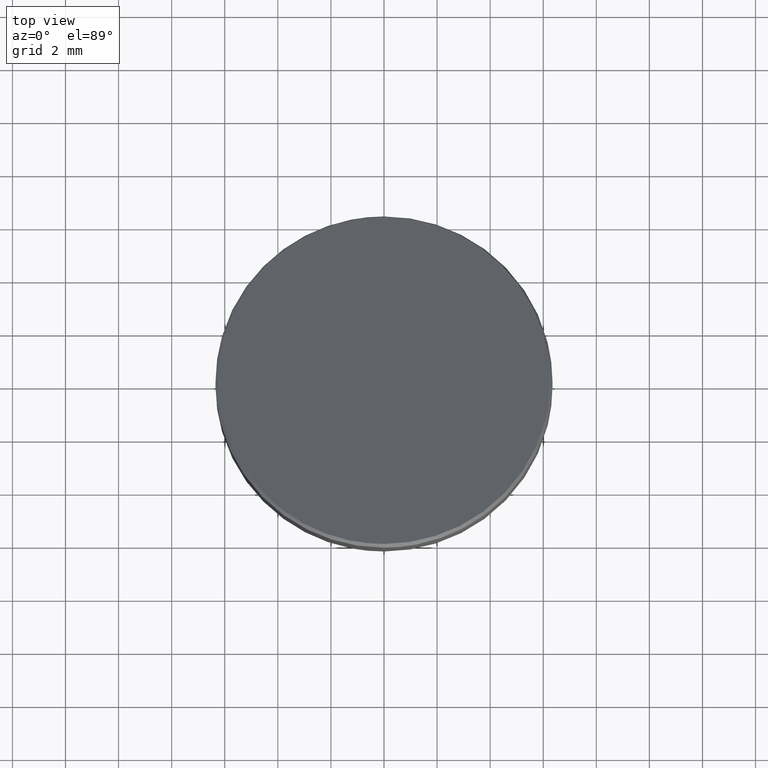
[diagram: clean part render]
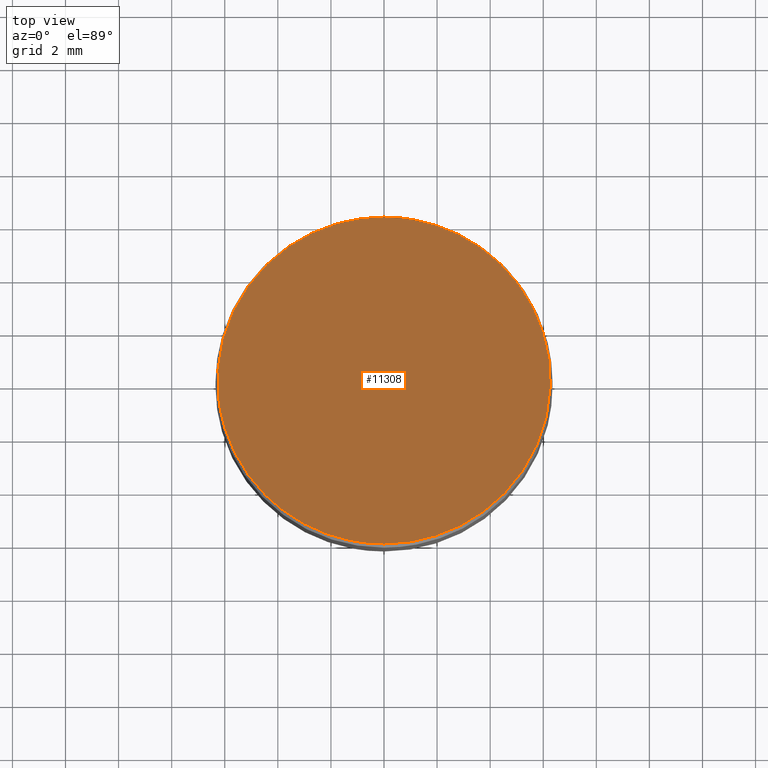
[diagram: same view with one face highlighted and labeled with its STEP entity id]
A machine part, top view. The second image highlights one B-rep face of the part: STEP entity #11308.
In plain terms, the highlighted planar face has unit normal (0, 0.7071, 0.7071).
Its self-contained STEP definition (entity closure, byte-faithful):
#30 = CARTESIAN_POINT ( 'NONE',  ( 0.1236938458120108900, 0.2164077916450923000, -0.04936711331123130900 ) ) ;
#370 = DIRECTION ( 'NONE',  ( 0.0000000000000000000, -0.7071269487750557700, 0.7070866130228172800 ) ) ;
#858 = CARTESIAN_POINT ( 'NONE',  ( -0.03219257459210835700, 0.2470684712412114800, -0.08002604396880717800 ) ) ;
#900 = CARTESIAN_POINT ( 'NONE',  ( -0.2388538060925773100, 0.06624100440119425100, 0.1007911081576879100 ) ) ;
#946 = CARTESIAN_POINT ( 'NONE',  ( -0.03235059124529297100, -0.2428323249004744900, 0.4098468073785686000 ) ) ;
#1011 = CARTESIAN_POINT ( 'NONE',  ( 8.195543980992789700E-016, -0.2444320712694882400, 0.4114464624952645600 ) ) ;
#1052 = CARTESIAN_POINT ( 'NONE',  ( 0.2217912498593062300, -0.1069980362884869600, 0.2740202669908858900 ) ) ;
#1083 = VERTEX_POINT ( 'NONE', #13194 ) ;
#1093 = CARTESIAN_POINT ( 'NONE',  ( 0.07955143171238507300, 0.2364240269457660900, -0.06938220685099609500 ) ) ;
#1406 = PLANE ( 'NONE',  #4153 ) ;
#1435 = ORIENTED_EDGE ( 'NONE', *, *, #7948, .T. ) ;
#1896 = CARTESIAN_POINT ( 'NONE',  ( -0.004065366776647643700, 0.2490439292087247800, -0.08200138925275883600 ) ) ;
#1937 = CARTESIAN_POINT ( 'NONE',  ( -0.06392425699630477400, 0.2411644785700457800, -0.07412238807166218700 ) ) ;
#1985 = CARTESIAN_POINT ( 'NONE',  ( -0.2467373445090614000, 0.01841445051847449500, 0.1486149339305100100 ) ) ;
#2029 = CARTESIAN_POINT ( 'NONE',  ( 8.195543980992789700E-016, -0.2444320712694882400, 0.4114464624952645600 ) ) ;
#2135 = CARTESIAN_POINT ( 'NONE',  ( 0.2388538060929723000, -0.06162845827768503200, 0.2286532769398002300 ) ) ;
#2185 = CARTESIAN_POINT ( 'NONE',  ( 0.04024342714611343200, 0.2458742401561893900, -0.07883188100480539900 ) ) ;
#3033 = CARTESIAN_POINT ( 'NONE',  ( -0.1092948945511083800, 0.2241038812459978900, -0.05706276391378747200 ) ) ;
#3075 = CARTESIAN_POINT ( 'NONE',  ( -0.2402833240623235600, -0.06235160729336544600, 0.2293763847058019100 ) ) ;
#3177 = CARTESIAN_POINT ( 'NONE',  ( 0.06392425699851217400, -0.2365519324485002600, 0.4035667731711139500 ) ) ;
#3219 = CARTESIAN_POINT ( 'NONE',  ( 0.2467373445090630400, -0.01380190439707586200, 0.1808294511690885200 ) ) ;
#3264 = CARTESIAN_POINT ( 'NONE',  ( 0.01617673276224491200, 0.2486458939789801300, -0.08160337672763672000 ) ) ;
#4117 = CARTESIAN_POINT ( 'NONE',  ( -0.1504684254226466300, 0.1985175895099774400, -0.03147793166439227800 ) ) ;
#4153 = AXIS2_PLACEMENT_3D ( 'NONE', #13326, #6837, #370 ) ;
#4164 = CARTESIAN_POINT ( 'NONE',  ( -0.1972439699620674700, -0.1493873855933499100, 0.3164071983334661400 ) ) ;
#4190 = B_SPLINE_CURVE_WITH_KNOTS ( 'NONE', 3,
 ( #1011, #12694, #9679, #3177, #10759, #4271, #11841, #5351, #12916, #6442, #14019, #7543, #1052, #8638, #2135, #9719, #3219, #10815, #4314, #11883, #5402, #12969, #6481, #30, #7596, #1093, #8685, #2185, #9765, #3264, #10857, #4367 ),
 .UNSPECIFIED., .F., .F.,
 ( 4, 2, 2, 2, 2, 2, 2, 2, 2, 2, 2, 2, 2, 2, 2, 4 ),
 ( 0.5000000000000000000, 0.5312500000000000000, 0.5625000000000000000, 0.5937500000000000000, 0.6250000000000000000, 0.6562500000000000000, 0.6875000000000000000, 0.7187500000000000000, 0.7500000000000000000, 0.8125000000000000000, 0.8750000000000000000, 0.9062500000000000000, 0.9375000000000000000, 0.9687500000000000000, 0.9843750000000000000, 1.000000000000000000 ),
 .UNSPECIFIED. ) ;
#4271 = CARTESIAN_POINT ( 'NONE',  ( 0.1092948945533153000, -0.2194913351239959100, 0.3865071490127828200 ) ) ;
#4314 = CARTESIAN_POINT ( 'NONE',  ( 0.2402833240636249300, 0.06696415341137550200, 0.1000680003971851400 ) ) ;
#4367 = CARTESIAN_POINT ( 'NONE',  ( 8.128848473334970200E-016, 0.2490446173905531700, -0.08200207739533216200 ) ) ;
#5208 = CARTESIAN_POINT ( 'NONE',  ( -0.1858587053530097500, 0.1653898227631247500, 0.001647945416970999200 ) ) ;
#5253 = CARTESIAN_POINT ( 'NONE',  ( -0.1504671130965525300, -0.1939030793554308000, 0.3609203528428747700 ) ) ;
#5351 = CARTESIAN_POINT ( 'NONE',  ( 0.1504684254219662600, -0.1939050433893726400, 0.3609223167647847600 ) ) ;
#5402 = CARTESIAN_POINT ( 'NONE',  ( 0.1972439699589218200, 0.1539999317175387300, 0.01303718676334229000 ) ) ;
#6249 = CARTESIAN_POINT ( 'NONE',  ( -0.008086753559351114400, 0.2489445059142304500, -0.08190197162954239400 ) ) ;
#6293 = CARTESIAN_POINT ( 'NONE',  ( -0.2141054907259598600, 0.1259938479179954200, 0.04104167304710829000 ) ) ;
#6339 = CARTESIAN_POINT ( 'NONE',  ( -0.1092939212971276400, -0.2194889854783309000, 0.3865047995011456300 ) ) ;
#6442 = CARTESIAN_POINT ( 'NONE',  ( 0.1858587053533158100, -0.1607772766416541200, 0.3277964396825557300 ) ) ;
#6481 = CARTESIAN_POINT ( 'NONE',  ( 0.1504671130965924400, 0.1985156254764808600, -0.03147596774292758800 ) ) ;
#6837 = DIRECTION ( 'NONE',  ( 0.0000000000000000000, 0.7070866130228173900, 0.7071269487750558900 ) ) ;
#7348 = CARTESIAN_POINT ( 'NONE',  ( -0.02018059308526276900, 0.2482505216126261500, -0.08120802691401081400 ) ) ;
#7395 = CARTESIAN_POINT ( 'NONE',  ( -0.2341217625651596500, 0.08184731672016896900, 0.08518568604993785600 ) ) ;
#7446 = CARTESIAN_POINT ( 'NONE',  ( -0.06392193485284533600, -0.2365498014383571900, 0.4035646422825274700 ) ) ;
#7543 = CARTESIAN_POINT ( 'NONE',  ( 0.2141054907259430400, -0.1213813017969060700, 0.2884027120527996600 ) ) ;
#7561 = VERTEX_POINT ( 'NONE', #12413 ) ;
#7596 = CARTESIAN_POINT ( 'NONE',  ( 0.1092939212962012700, 0.2241015315997552900, -0.05706041440157282700 ) ) ;
#7948 = EDGE_CURVE ( 'NONE', #7561, #1083, #4190, .T. ) ;
#8434 = CARTESIAN_POINT ( 'NONE',  ( -0.04024226607545114400, 0.2458731746506979700, -0.07883081556009227700 ) ) ;
#8477 = CARTESIAN_POINT ( 'NONE',  ( -0.2451408663673178000, 0.03464406781801122200, 0.1323862423965991000 ) ) ;
#8525 = CARTESIAN_POINT ( 'NONE',  ( -0.01609333563919165100, -0.2444307091344977700, 0.4114451004379727200 ) ) ;
#8638 = CARTESIAN_POINT ( 'NONE',  ( 0.2341217625651523200, -0.07723477059903238700, 0.2442586990499228400 ) ) ;
#8685 = CARTESIAN_POINT ( 'NONE',  ( 0.06392193485498756700, 0.2411623475590629100, -0.07412025718223587400 ) ) ;
#9486 = CARTESIAN_POINT ( 'NONE',  ( 8.128848473334970200E-016, 0.2490446173905531700, -0.08200207739533216200 ) ) ;
#9533 = CARTESIAN_POINT ( 'NONE',  ( -0.07955045845747391000, 0.2364216772995239300, -0.06937985733878178400 ) ) ;
#9571 = CARTESIAN_POINT ( 'NONE',  ( -0.2467403439719376700, -0.02991008185535156500, 0.1969367097888783900 ) ) ;
#9679 = CARTESIAN_POINT ( 'NONE',  ( 0.03234826909962969200, -0.2428301938903311100, 0.4098446764899818500 ) ) ;
#9719 = CARTESIAN_POINT ( 'NONE',  ( 0.2451408663669260600, -0.03003152169939092200, 0.1970581427057775400 ) ) ;
#9765 = CARTESIAN_POINT ( 'NONE',  ( 0.03219244107951402300, 0.2470671156653290500, -0.08002468847024923900 ) ) ;
#10615 = CARTESIAN_POINT ( 'NONE',  ( -0.1236925334859530900, 0.2164058276115959400, -0.04936514938976683400 ) ) ;
#10665 = CARTESIAN_POINT ( 'NONE',  ( -0.2156296883621322000, -0.1218811995941531900, 0.2889025813350060700 ) ) ;
#10759 = CARTESIAN_POINT ( 'NONE',  ( 0.07955045845526974300, -0.2318091311793964400, 0.3988242424396514200 ) ) ;
#10815 = CARTESIAN_POINT ( 'NONE',  ( 0.2467403439719393100, 0.03452262797575032100, 0.1325076753117200600 ) ) ;
#10857 = CARTESIAN_POINT ( 'NONE',  ( 0.008019347854295148100, 0.2490459748989337600, -0.08200343482627814300 ) ) ;
#11100 = FACE_OUTER_BOUND ( 'NONE', #12717, .T. ) ;
#11308 = ADVANCED_FACE ( 'NONE', ( #11100 ), #1406, .T. ) ;
#11693 = CARTESIAN_POINT ( 'NONE',  ( -0.1630820075559872000, 0.1881634362669381600, -0.02112436904028020700 ) ) ;
#11733 = CARTESIAN_POINT ( 'NONE',  ( -0.1630835497007137000, -0.1835524322942750400, 0.3505702962006476100 ) ) ;
#11841 = CARTESIAN_POINT ( 'NONE',  ( 0.1236925334866364700, -0.2117932814900711200, 0.3788095344892391500 ) ) ;
#11883 = CARTESIAN_POINT ( 'NONE',  ( 0.2156296883608343200, 0.1264937457182720400, 0.04054180376187253900 ) ) ;
#11905 = EDGE_CURVE ( 'NONE', #1083, #7561, #12211, .T. ) ;
#12211 = B_SPLINE_CURVE_WITH_KNOTS ( 'NONE', 3,
 ( #9486, #1896, #6249, #13815, #7348, #858, #8434, #1937, #9533, #3033, #10615, #4117, #11693, #5208, #12768, #6293, #13868, #7395, #900, #8477, #1985, #9571, #3075, #10665, #4164, #11733, #5253, #12816, #6339, #13909, #7446, #946, #8525, #2029 ),
 .UNSPECIFIED., .F., .F.,
 ( 4, 2, 2, 2, 2, 2, 2, 2, 2, 2, 2, 2, 2, 2, 2, 2, 4 ),
 ( 0.0000000000000000000, 0.007812499999999998300, 0.01562499999999999700, 0.03124999999999998600, 0.06249999999999995800, 0.09374999999999994400, 0.1249999999999999200, 0.1562499999999998900, 0.1874999999999998600, 0.2187499999999998300, 0.2499999999999998300, 0.3124999999999998300, 0.3749999999999998300, 0.4062499999999998300, 0.4374999999999998900, 0.4687499999999999400, 0.5000000000000000000 ),
 .UNSPECIFIED. ) ;
#12413 = CARTESIAN_POINT ( 'NONE',  ( 8.195543980992789700E-016, -0.2444320712694882400, 0.4114464624952645600 ) ) ;
#12694 = CARTESIAN_POINT ( 'NONE',  ( 0.01609333563919380200, -0.2444334334044787900, 0.4114478245525566300 ) ) ;
#12717 = EDGE_LOOP ( 'NONE', ( #13270, #1435 ) ) ;
#12768 = CARTESIAN_POINT ( 'NONE',  ( -0.1962053802745475100, 0.1527796571116703000, 0.01425739176262285100 ) ) ;
#12816 = CARTESIAN_POINT ( 'NONE',  ( -0.1236938458120474800, -0.2117952455240126000, 0.3788114984111489700 ) ) ;
#12916 = CARTESIAN_POINT ( 'NONE',  ( 0.1630820075556843100, -0.1835508901462785400, 0.3505687541406178900 ) ) ;
#12969 = CARTESIAN_POINT ( 'NONE',  ( 0.1630835497022897800, 0.1881649784137769400, -0.02112591109915231200 ) ) ;
#13194 = CARTESIAN_POINT ( 'NONE',  ( 8.128848473334970200E-016, 0.2490446173905531700, -0.08200207739533216200 ) ) ;
#13270 = ORIENTED_EDGE ( 'NONE', *, *, #11905, .T. ) ;
#13326 = CARTESIAN_POINT ( 'NONE',  ( -0.9842519685039370400, 0.2500000000000001100, -0.08295740550809181700 ) ) ;
#13815 = CARTESIAN_POINT ( 'NONE',  ( -0.01612699404139639200, 0.2485501955733305000, -0.08150768378079074900 ) ) ;
#13868 = CARTESIAN_POINT ( 'NONE',  ( -0.2217912498592959900, 0.1116105824094791700, 0.05542411810911920800 ) ) ;
#13909 = CARTESIAN_POINT ( 'NONE',  ( -0.07955143171145519200, -0.2318114808250608700, 0.3988265919512878900 ) ) ;
#14019 = CARTESIAN_POINT ( 'NONE',  ( 0.1962053802745672100, -0.1481671109906303200, 0.3151869933373344600 ) ) ;